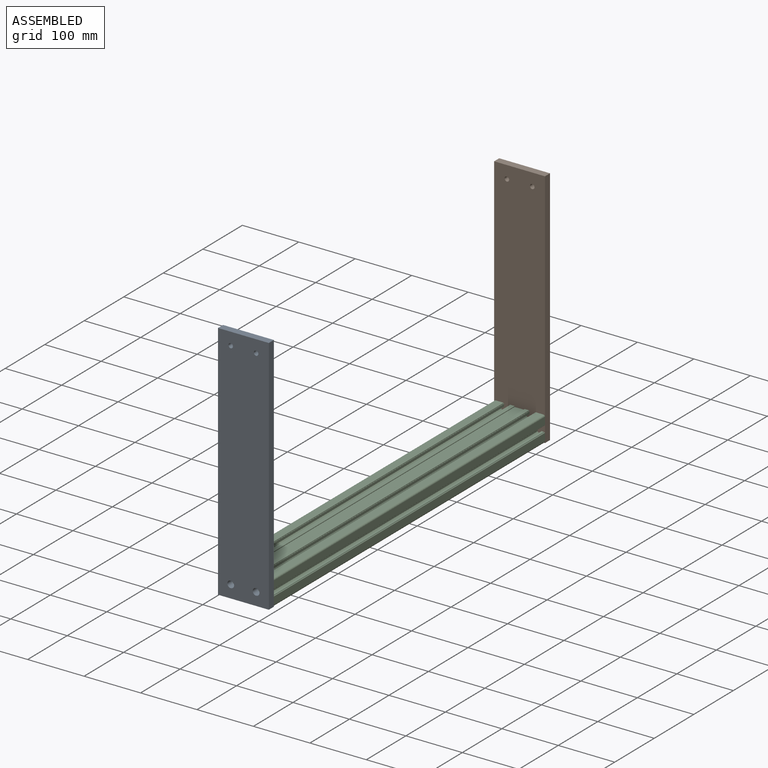
[diagram: assembled view]
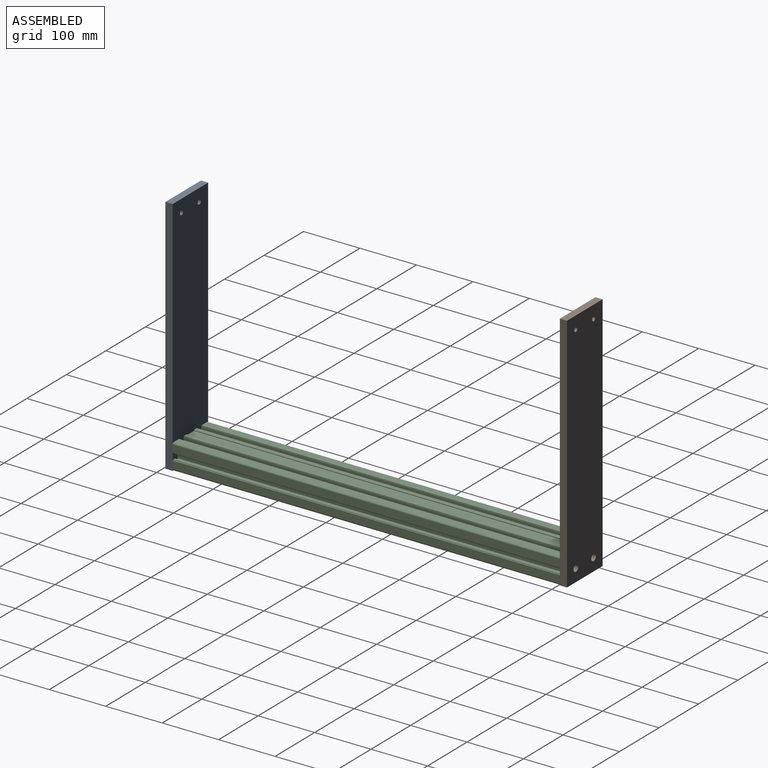
[diagram: assembled view, second angle]
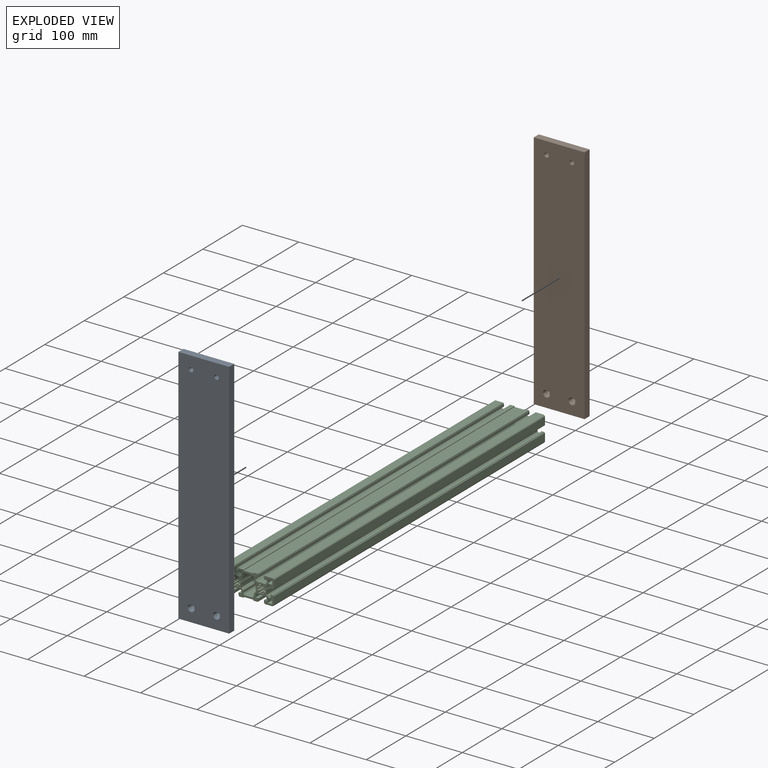
[diagram: exploded view]
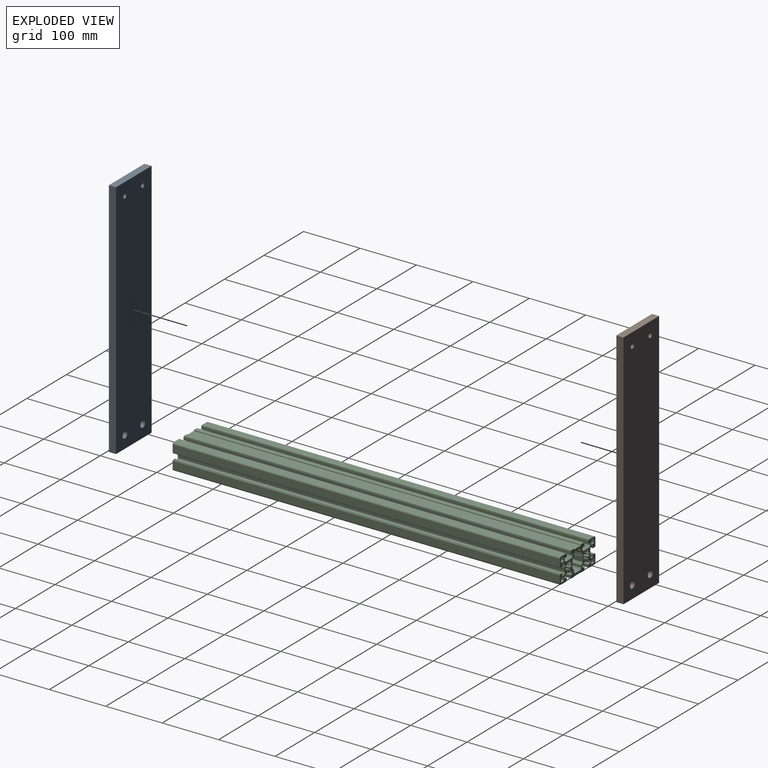
[diagram: exploded view, second angle]
ASSEMBLY  parts=3 mates=2
PART A: 10 faces, bbox 90x12.7x427.2 mm
  f0: plane 90x12.7mm, normal (0,0,1), area 1143mm2, adj f1,f7,f8,f9
  f1: plane 427.15x12.7mm, normal (-1,0,0), area 5424.8mm2, adj f0,f2,f8,f9
  f2: plane 90x12.7mm, normal (0,0,-1), area 1143mm2, adj f1,f7,f8,f9
  f3: cylinder r=6mm len=12.7mm, axis (0,1,0), area 478.8mm2, adj f8,f9
  f4: cylinder r=6mm len=12.7mm, axis (0,1,0), area 478.8mm2, adj f8,f9
  f5: cylinder r=4mm len=12.7mm, axis (0,1,0), area 319.2mm2, adj f8,f9
  f6: cylinder r=4mm len=12.7mm, axis (0,1,0), area 319.2mm2, adj f8,f9
  f7: plane 427.15x12.7mm, normal (1,0,0), area 5424.8mm2, adj f0,f2,f8,f9
  f8: plane 427.15x90mm, normal (0,-1,0), area 38116.9mm2, adj f0,f1,f2,f3,f4,f5,f6,f7
  f9: plane 427.15x90mm, normal (0,1,0), area 38116.9mm2, adj f0,f1,f2,f3,f4,f5,f6,f7
PART B: same geometry as A
PART C: 246 faces, bbox 45x90x686 mm
  f0: cylinder r=4mm len=686mm, axis (0,0,1), area 4310.3mm2, adj f131,f132,f224,f225
  f1: cylinder r=5mm len=686mm, axis (0,0,1), area 1197.3mm2, adj f131,f132,f183,f184
  f2: cylinder r=5mm len=686mm, axis (0,0,1), area 1197.3mm2, adj f131,f132,f160,f161
  f3: cylinder r=10mm len=686mm, axis (0,0,1), area 4357.2mm2, adj f67,f68,f131,f132
  f4: cylinder r=10mm len=686mm, axis (0,0,1), area 4357.2mm2, adj f44,f45,f131,f132
  f5: cylinder r=10mm len=686mm, axis (0,0,1), area 4357.2mm2, adj f6,f130,f131,f132
  f6: plane 686x4.08mm, normal (-1,0,0), area 2801.9mm2, adj f5,f7,f131,f132
  f7: plane 686x2.84mm, normal (-0.71,-0.71,0), area 2758.1mm2, adj f6,f8,f131,f132
  f8: plane 686x4.16mm, normal (0,-1,0), area 2851.8mm2, adj f7,f9,f131,f132
  f9: plane 686x5.05mm, normal (1,0,0), area 3464mm2, adj f8,f10,f131,f132
  f10: plane 686x4.5mm, normal (0,-1,0), area 3087mm2, adj f9,f11,f131,f132
  f11: plane 686x0.8mm, normal (-1,0,0), area 548.5mm2, adj f10,f12,f131,f132
  f12: plane 686x1mm, normal (0,-1,0), area 686mm2, adj f11,f13,f131,f132
  f13: cylinder r=0.5mm len=686mm, axis (0,0,1), area 538.8mm2, adj f12,f14,f131,f132
  f14: plane 686x13.2mm, normal (-1,0,0), area 9055.4mm2, adj f13,f15,f131,f132
  f15: cylinder r=3mm len=686mm, axis (0,0,1), area 3232.7mm2, adj f14,f16,f131,f132
  f16: plane 686x13.2mm, normal (0,1,0), area 9055.1mm2, adj f15,f17,f131,f132
  f17: cylinder r=0.5mm len=686mm, axis (0,0,1), area 538.8mm2, adj f16,f18,f131,f132
  f18: plane 686x1mm, normal (1,0,0), area 686.1mm2, adj f17,f19,f131,f132
  f19: plane 686x0.8mm, normal (0,1,0), area 548.9mm2, adj f18,f20,f131,f132
  f20: plane 686x4.5mm, normal (1,0,0), area 3087mm2, adj f19,f21,f131,f132
  f21: plane 686x5.05mm, normal (0,-1,0), area 3464.3mm2, adj f20,f22,f131,f132
  f22: plane 686x4.16mm, normal (1,0,0), area 2851.8mm2, adj f21,f23,f131,f132
  f23: plane 686x2.84mm, normal (0.71,0.71,0), area 2758.1mm2, adj f22,f24,f131,f132
  f24: plane 686x4.08mm, normal (0,1,0), area 2801.9mm2, adj f23,f25,f131,f132
  f25: cylinder r=10mm len=686mm, axis (0,0,1), area 4357.2mm2, adj f24,f26,f131,f132
  f26: plane 686x4.08mm, normal (0,1,0), area 2801.9mm2, adj f25,f27,f131,f132
  f27: plane 686x2.84mm, normal (-0.71,0.71,0), area 2758.1mm2, adj f26,f28,f131,f132
  f28: plane 686x4.16mm, normal (-1,0,0), area 2851.8mm2, adj f27,f29,f131,f132
  f29: plane 686x5.05mm, normal (0,-1,0), area 3464.3mm2, adj f28,f30,f131,f132
  f30: plane 686x4.5mm, normal (-1,0,0), area 3087mm2, adj f29,f31,f131,f132
  f31: plane 686x0.8mm, normal (0,1,0), area 548.9mm2, adj f30,f32,f131,f132
  f32: plane 686x1mm, normal (-1,0,0), area 686.1mm2, adj f31,f33,f131,f132
  f33: cylinder r=0.5mm len=686mm, axis (0,0,1), area 538.8mm2, adj f32,f34,f131,f132
  f34: plane 686x13.2mm, normal (0,1,0), area 9055.1mm2, adj f33,f35,f131,f132
  f35: cylinder r=3mm len=686mm, axis (0,0,1), area 3232.7mm2, adj f34,f36,f131,f132
  f36: plane 686x13.2mm, normal (1,0,0), area 9055.2mm2, adj f35,f37,f131,f132
  f37: cylinder r=0.5mm len=686mm, axis (0,0,1), area 538.8mm2, adj f36,f38,f131,f132
  f38: plane 686x1mm, normal (0,-1,0), area 686mm2, adj f37,f39,f131,f132
  f39: plane 686x0.8mm, normal (1,0,0), area 548.8mm2, adj f38,f40,f131,f132
  f40: plane 686x4.5mm, normal (0,-1,0), area 3087mm2, adj f39,f41,f131,f132
  f41: plane 686x5.05mm, normal (-1,0,0), area 3464.3mm2, adj f40,f42,f131,f132
  f42: plane 686x4.16mm, normal (0,-1,0), area 2851.8mm2, adj f41,f43,f131,f132
  f43: plane 686x2.84mm, normal (0.71,-0.71,0), area 2758.1mm2, adj f42,f44,f131,f132
  f44: plane 686x4.08mm, normal (1,0,0), area 2801.9mm2, adj f4,f43,f131,f132
  f45: plane 686x4.08mm, normal (1,0,0), area 2801.9mm2, adj f4,f46,f131,f132
  f46: plane 686x2.84mm, normal (0.71,0.71,0), area 2758.1mm2, adj f45,f47,f131,f132
  f47: plane 686x4.16mm, normal (0,1,0), area 2851.8mm2, adj f46,f48,f131,f132
  f48: plane 686x5.05mm, normal (-1,0,0), area 3464.3mm2, adj f47,f49,f131,f132
  f49: plane 686x4.5mm, normal (0,1,0), area 3087mm2, adj f48,f50,f131,f132
  f50: plane 686x0.8mm, normal (1,0,0), area 548.9mm2, adj f49,f51,f131,f132
  f51: plane 686x1mm, normal (0,1,0), area 686mm2, adj f50,f52,f131,f132
  f52: cylinder r=0.5mm len=686mm, axis (0,0,1), area 538.8mm2, adj f51,f53,f131,f132
  f53: plane 686x6.95mm, normal (1,0,0), area 4767.7mm2, adj f52,f54,f131,f132
  f54: cylinder r=0.5mm len=686mm, axis (0,0,1), area 538.8mm2, adj f53,f55,f131,f132
  f55: plane 686x1mm, normal (0,-1,0), area 686mm2, adj f54,f56,f131,f132
  f56: plane 686x17.5mm, normal (1,0,0), area 12005mm2, adj f55,f57,f131,f132
  f57: plane 686x1mm, normal (0,1,0), area 686mm2, adj f56,f58,f131,f132
  f58: cylinder r=0.5mm len=686mm, axis (0,0,1), area 538.8mm2, adj f57,f59,f131,f132
  f59: plane 686x6.95mm, normal (1,0,0), area 4767.8mm2, adj f58,f60,f131,f132
  f60: cylinder r=0.5mm len=686mm, axis (0,0,1), area 538.8mm2, adj f59,f61,f131,f132
  f61: plane 686x1mm, normal (0,-1,0), area 685.9mm2, adj f60,f62,f131,f132
  f62: plane 686x0.8mm, normal (1,0,0), area 548.6mm2, adj f61,f63,f131,f132
  f63: plane 686x4.5mm, normal (0,-1,0), area 3087mm2, adj f62,f64,f131,f132
  f64: plane 686x5.05mm, normal (-1,0,0), area 3464.1mm2, adj f63,f65,f131,f132
  f65: plane 686x4.16mm, normal (0,-1,0), area 2851.8mm2, adj f64,f66,f131,f132
  f66: plane 686x2.84mm, normal (0.71,-0.71,0), area 2758.1mm2, adj f65,f67,f131,f132
  f67: plane 686x4.08mm, normal (1,0,0), area 2801.9mm2, adj f3,f66,f131,f132
  f68: plane 686x4.08mm, normal (1,0,0), area 2801.9mm2, adj f3,f69,f131,f132
  f69: plane 686x2.84mm, normal (0.71,0.71,0), area 2758.1mm2, adj f68,f70,f131,f132
  f70: plane 686x4.16mm, normal (0,1,0), area 2851.8mm2, adj f69,f71,f131,f132
  f71: plane 686x5.05mm, normal (-1,0,0), area 3464.3mm2, adj f70,f72,f131,f132
  f72: plane 686x4.5mm, normal (0,1,0), area 3086.9mm2, adj f71,f73,f131,f132
  f73: plane 686x0.8mm, normal (1,0,0), area 548.8mm2, adj f72,f74,f131,f132
  f74: plane 686x1mm, normal (0,1,0), area 686mm2, adj f73,f75,f131,f132
  f75: cylinder r=0.5mm len=686mm, axis (0,0,1), area 538.8mm2, adj f74,f76,f131,f132
  f76: plane 686x13.2mm, normal (1,0,0), area 9055.1mm2, adj f75,f77,f131,f132
  f77: cylinder r=3mm len=686mm, axis (0,0,1), area 3232.7mm2, adj f76,f78,f131,f132
  f78: plane 686x13.2mm, normal (0,-1,0), area 9055.2mm2, adj f77,f79,f131,f132
  f79: cylinder r=0.5mm len=686mm, axis (0,0,1), area 538.8mm2, adj f78,f80,f131,f132
  f80: plane 686x1mm, normal (-1,0,0), area 686mm2, adj f79,f81,f131,f132
  f81: plane 686x0.8mm, normal (0,-1,0), area 548.7mm2, adj f80,f82,f131,f132
  f82: plane 686x4.5mm, normal (-1,0,0), area 3087mm2, adj f81,f83,f131,f132
  f83: plane 686x5.05mm, normal (0,1,0), area 3464.2mm2, adj f82,f84,f131,f132
  f84: plane 686x4.16mm, normal (-1,0,0), area 2851.8mm2, adj f83,f85,f131,f132
  f85: plane 686x2.84mm, normal (-0.71,-0.71,0), area 2758.1mm2, adj f84,f86,f131,f132
  f86: plane 686x4.08mm, normal (0,-1,0), area 2801.9mm2, adj f85,f87,f131,f132
  f87: cylinder r=10mm len=686mm, axis (0,0,1), area 4357.2mm2, adj f86,f88,f131,f132
  f88: plane 686x4.08mm, normal (0,-1,0), area 2801.9mm2, adj f87,f89,f131,f132
  f89: plane 686x2.84mm, normal (0.71,-0.71,0), area 2758.1mm2, adj f88,f90,f131,f132
  f90: plane 686x4.16mm, normal (1,0,0), area 2851.8mm2, adj f89,f91,f131,f132
  f91: plane 686x5.05mm, normal (0,1,0), area 3464.3mm2, adj f90,f92,f131,f132
  f92: plane 686x4.5mm, normal (1,0,0), area 3087mm2, adj f91,f93,f131,f132
  f93: plane 686x0.8mm, normal (0,-1,0), area 548.8mm2, adj f92,f94,f131,f132
  f94: plane 686x1mm, normal (1,0,0), area 686mm2, adj f93,f95,f131,f132
  f95: cylinder r=0.5mm len=686mm, axis (0,0,1), area 538.8mm2, adj f94,f96,f131,f132
  f96: plane 686x13.2mm, normal (0,-1,0), area 9055.1mm2, adj f95,f97,f131,f132
  f97: cylinder r=3mm len=686mm, axis (0,0,1), area 3232.7mm2, adj f96,f98,f131,f132
  f98: plane 686x13.2mm, normal (-1,0,0), area 9055.2mm2, adj f97,f99,f131,f132
  f99: cylinder r=0.5mm len=686mm, axis (0,0,1), area 538.8mm2, adj f98,f100,f131,f132
  f100: plane 686x1mm, normal (0,1,0), area 686mm2, adj f99,f101,f131,f132
  f101: plane 686x0.8mm, normal (-1,0,0), area 548.8mm2, adj f100,f102,f131,f132
  f102: plane 686x4.5mm, normal (0,1,0), area 3087mm2, adj f101,f103,f131,f132
  f103: plane 686x5.05mm, normal (1,0,0), area 3464.3mm2, adj f102,f104,f131,f132
  f104: plane 686x4.16mm, normal (0,1,0), area 2851.8mm2, adj f103,f105,f131,f132
  f105: plane 686x2.84mm, normal (-0.71,0.71,0), area 2758.1mm2, adj f104,f106,f131,f132
  f106: plane 686x4.08mm, normal (-1,0,0), area 2801.9mm2, adj f105,f107,f131,f132
  f107: cylinder r=10mm len=686mm, axis (0,0,1), area 4357.2mm2, adj f106,f108,f131,f132
  f108: plane 686x4.08mm, normal (-1,0,0), area 2801.9mm2, adj f107,f109,f131,f132
  f109: plane 686x2.84mm, normal (-0.71,-0.71,0), area 2758.1mm2, adj f108,f110,f131,f132
  f110: plane 686x4.16mm, normal (0,-1,0), area 2851.8mm2, adj f109,f111,f131,f132
  f111: plane 686x5.05mm, normal (1,0,0), area 3464.3mm2, adj f110,f112,f131,f132
  f112: plane 686x4.5mm, normal (0,-1,0), area 3087mm2, adj f111,f113,f131,f132
  f113: plane 686x0.8mm, normal (-1,0,0), area 548.8mm2, adj f112,f114,f131,f132
  f114: plane 686x1mm, normal (0,-1,0), area 686mm2, adj f113,f115,f131,f132
  f115: cylinder r=0.5mm len=686mm, axis (0,0,1), area 538.8mm2, adj f114,f116,f131,f132
  f116: plane 686x6.95mm, normal (-1,0,0), area 4767.7mm2, adj f115,f117,f131,f132
  f117: cylinder r=0.5mm len=686mm, axis (0,0,1), area 538.8mm2, adj f116,f118,f131,f132
  f118: plane 686x1mm, normal (0,1,0), area 686mm2, adj f117,f119,f131,f132
  f119: plane 686x17.5mm, normal (-1,0,0), area 12005mm2, adj f118,f120,f131,f132
  f120: plane 686x1mm, normal (0,-1,0), area 686mm2, adj f119,f121,f131,f132
  f121: cylinder r=0.5mm len=686mm, axis (0,0,1), area 538.8mm2, adj f120,f122,f131,f132
  f122: plane 686x6.95mm, normal (-1,0,0), area 4767.6mm2, adj f121,f123,f131,f132
  f123: cylinder r=0.5mm len=686mm, axis (0,0,1), area 538.8mm2, adj f122,f124,f131,f132
  f124: plane 686x1mm, normal (0,1,0), area 686mm2, adj f123,f125,f131,f132
  f125: plane 686x0.8mm, normal (-1,0,0), area 548.8mm2, adj f124,f126,f131,f132
  f126: plane 686x4.5mm, normal (0,1,0), area 3087mm2, adj f125,f127,f131,f132
  f127: plane 686x5.05mm, normal (1,0,0), area 3464.3mm2, adj f126,f128,f131,f132
  f128: plane 686x4.16mm, normal (0,1,0), area 2851.8mm2, adj f127,f129,f131,f132
  f129: plane 686x2.84mm, normal (-0.71,0.71,0), area 2758.1mm2, adj f128,f130,f131,f132
  f130: plane 686x4.08mm, normal (-1,0,0), area 2801.9mm2, adj f5,f129,f131,f132
  f131: plane 90x45mm, normal (0,0,-1), area 1522.3mm2, adj f0,f1,f2,f3,f4,f5,f6,f7
  f132: plane 90x45mm, normal (0,0,1), area 1522.3mm2, adj f0,f1,f2,f3,f4,f5,f6,f7
  f133: cylinder r=5mm len=686mm, axis (0,0,1), area 1197.3mm2, adj f131,f132,f134,f163
  f134: plane 686x2.46mm, normal (-0.82,-0.57,0), area 2058mm2, adj f131,f132,f133,f135
  f135: cylinder r=8mm len=686mm, axis (0,0,1), area 2394.6mm2, adj f131,f132,f134,f136
  f136: plane 686x2.95mm, normal (0.98,0.17,0), area 2058mm2, adj f131,f132,f135,f137
  f137: cylinder r=5mm len=686mm, axis (0,0,1), area 1197.3mm2, adj f131,f132,f136,f138
  f138: plane 686x2.95mm, normal (-0.98,0.17,0), area 2058mm2, adj f131,f132,f137,f139
  f139: cylinder r=8mm len=686mm, axis (0,0,1), area 2394.6mm2, adj f131,f132,f138,f140
  f140: plane 686x2.46mm, normal (0.82,-0.57,0), area 2058mm2, adj f131,f132,f139,f141
  f141: cylinder r=5mm len=686mm, axis (0,0,1), area 1197.3mm2, adj f131,f132,f140,f142
  f142: plane 686x2.46mm, normal (-0.57,0.82,0), area 2058mm2, adj f131,f132,f141,f143
  f143: cylinder r=8mm len=686mm, axis (0,0,1), area 2394.6mm2, adj f131,f132,f142,f144
  f144: plane 686x2.95mm, normal (0.17,-0.98,0), area 2058mm2, adj f131,f132,f143,f145
  f145: cylinder r=5mm len=686mm, axis (0,0,1), area 1197.3mm2, adj f131,f132,f144,f146
  f146: plane 686x2.95mm, normal (0.17,0.98,0), area 2058mm2, adj f131,f132,f145,f147
  f147: cylinder r=8mm len=686mm, axis (0,0,1), area 2394.6mm2, adj f131,f132,f146,f148
  f148: plane 686x2.46mm, normal (-0.57,-0.82,0), area 2058mm2, adj f131,f132,f147,f149
  f149: cylinder r=5mm len=686mm, axis (0,0,1), area 1197.3mm2, adj f131,f132,f148,f150
  f150: plane 686x2.46mm, normal (0.82,0.57,0), area 2058mm2, adj f131,f132,f149,f151
  f151: cylinder r=8mm len=686mm, axis (0,0,1), area 2394.6mm2, adj f131,f132,f150,f152
  f152: plane 686x2.95mm, normal (-0.98,-0.17,0), area 2058mm2, adj f131,f132,f151,f153
  f153: cylinder r=5mm len=686mm, axis (0,0,1), area 1197.3mm2, adj f131,f132,f152,f154
  f154: plane 686x2.95mm, normal (0.98,-0.17,0), area 2058mm2, adj f131,f132,f153,f155
  f155: cylinder r=8mm len=686mm, axis (0,0,1), area 2394.6mm2, adj f131,f132,f154,f156
  f156: plane 686x2.46mm, normal (-0.82,0.57,0), area 2058mm2, adj f131,f132,f155,f157
  f157: cylinder r=5mm len=686mm, axis (0,0,1), area 1197.3mm2, adj f131,f132,f156,f158
  f158: plane 686x2.46mm, normal (0.57,-0.82,0), area 2058mm2, adj f131,f132,f157,f159
  f159: cylinder r=8mm len=686mm, axis (0,0,1), area 2394.6mm2, adj f131,f132,f158,f160
  f160: plane 686x2.95mm, normal (-0.17,0.98,0), area 2058mm2, adj f2,f131,f132,f159
  f161: plane 686x2.95mm, normal (-0.17,-0.98,0), area 2058mm2, adj f2,f131,f132,f162
  f162: cylinder r=8mm len=686mm, axis (0,0,1), area 2394.6mm2, adj f131,f132,f161,f163
  f163: plane 686x2.46mm, normal (0.57,0.82,0), area 2058mm2, adj f131,f132,f133,f162
  f164: cylinder r=1mm len=686mm, axis (0,0,1), area 1077.6mm2, adj f131,f132,f165,f171
  f165: plane 686x5.5mm, normal (0,-1,0), area 3773mm2, adj f131,f132,f164,f166
  f166: cylinder r=1mm len=686mm, axis (0,0,1), area 1077.6mm2, adj f131,f132,f165,f167
  f167: plane 686x5.5mm, normal (-1,0,0), area 3773mm2, adj f131,f132,f166,f168
  f168: cylinder r=1mm len=686mm, axis (0,0,1), area 1077.6mm2, adj f131,f132,f167,f169
  f169: plane 686x5.5mm, normal (0,1,0), area 3773mm2, adj f131,f132,f168,f170
  f170: cylinder r=1mm len=686mm, axis (0,0,1), area 1077.6mm2, adj f131,f132,f169,f171
  f171: plane 686x5.5mm, normal (1,0,0), area 3773mm2, adj f131,f132,f164,f170
  f172: cylinder r=1mm len=686mm, axis (0,0,1), area 1077.6mm2, adj f131,f132,f173,f179
  f173: plane 686x5.5mm, normal (0,-1,0), area 3773mm2, adj f131,f132,f172,f174
  f174: cylinder r=1mm len=686mm, axis (0,0,1), area 1077.6mm2, adj f131,f132,f173,f175
  f175: plane 686x5.5mm, normal (-1,0,0), area 3773mm2, adj f131,f132,f174,f176
  f176: cylinder r=1mm len=686mm, axis (0,0,1), area 1077.6mm2, adj f131,f132,f175,f177
  f177: plane 686x5.5mm, normal (0,1,0), area 3773mm2, adj f131,f132,f176,f178
  f178: cylinder r=1mm len=686mm, axis (0,0,1), area 1077.6mm2, adj f131,f132,f177,f179
  f179: plane 686x5.5mm, normal (1,0,0), area 3773mm2, adj f131,f132,f172,f178
  f180: cylinder r=5mm len=686mm, axis (0,0,1), area 1197.3mm2, adj f131,f132,f181,f210
  f181: plane 686x2.46mm, normal (0.57,-0.82,0), area 2058mm2, adj f131,f132,f180,f182
  f182: cylinder r=8mm len=686mm, axis (0,0,1), area 2394.6mm2, adj f131,f132,f181,f183
  f183: plane 686x2.95mm, normal (-0.17,0.98,0), area 2058mm2, adj f1,f131,f132,f182
  f184: plane 686x2.95mm, normal (-0.17,-0.98,0), area 2058mm2, adj f1,f131,f132,f185
  f185: cylinder r=8mm len=686mm, axis (0,0,1), area 2394.6mm2, adj f131,f132,f184,f186
  f186: plane 686x2.46mm, normal (0.57,0.82,0), area 2058mm2, adj f131,f132,f185,f187
  f187: cylinder r=5mm len=686mm, axis (0,0,1), area 1197.3mm2, adj f131,f132,f186,f188
  f188: plane 686x2.46mm, normal (-0.82,-0.57,0), area 2058mm2, adj f131,f132,f187,f189
  f189: cylinder r=8mm len=686mm, axis (0,0,1), area 2394.6mm2, adj f131,f132,f188,f190
  f190: plane 686x2.95mm, normal (0.98,0.17,0), area 2058mm2, adj f131,f132,f189,f191
  f191: cylinder r=5mm len=686mm, axis (0,0,1), area 1197.3mm2, adj f131,f132,f190,f192
  f192: plane 686x2.95mm, normal (-0.98,0.17,0), area 2058mm2, adj f131,f132,f191,f193
  f193: cylinder r=8mm len=686mm, axis (0,0,1), area 2394.6mm2, adj f131,f132,f192,f194
  f194: plane 686x2.46mm, normal (0.82,-0.57,0), area 2058mm2, adj f131,f132,f193,f195
  f195: cylinder r=5mm len=686mm, axis (0,0,1), area 1197.3mm2, adj f131,f132,f194,f196
  f196: plane 686x2.46mm, normal (-0.57,0.82,0), area 2058mm2, adj f131,f132,f195,f197
  f197: cylinder r=8mm len=686mm, axis (0,0,1), area 2394.6mm2, adj f131,f132,f196,f198
  f198: plane 686x2.95mm, normal (0.17,-0.98,0), area 2058mm2, adj f131,f132,f197,f199
  f199: cylinder r=5mm len=686mm, axis (0,0,1), area 1197.3mm2, adj f131,f132,f198,f200
  f200: plane 686x2.95mm, normal (0.17,0.98,0), area 2058mm2, adj f131,f132,f199,f201
  f201: cylinder r=8mm len=686mm, axis (0,0,1), area 2394.6mm2, adj f131,f132,f200,f202
  f202: plane 686x2.46mm, normal (-0.57,-0.82,0), area 2058mm2, adj f131,f132,f201,f203
  f203: cylinder r=5mm len=686mm, axis (0,0,1), area 1197.3mm2, adj f131,f132,f202,f204
  f204: plane 686x2.46mm, normal (0.82,0.57,0), area 2058mm2, adj f131,f132,f203,f205
  f205: cylinder r=8mm len=686mm, axis (0,0,1), area 2394.6mm2, adj f131,f132,f204,f206
  f206: plane 686x2.95mm, normal (-0.98,-0.17,0), area 2058mm2, adj f131,f132,f205,f207
  f207: cylinder r=5mm len=686mm, axis (0,0,1), area 1197.3mm2, adj f131,f132,f206,f208
  f208: plane 686x2.95mm, normal (0.98,-0.17,0), area 2058mm2, adj f131,f132,f207,f209
  f209: cylinder r=8mm len=686mm, axis (0,0,1), area 2394.6mm2, adj f131,f132,f208,f210
  f210: plane 686x2.46mm, normal (-0.82,0.57,0), area 2058mm2, adj f131,f132,f180,f209
  f211: cylinder r=10mm len=686mm, axis (0,0,1), area 4356.9mm2, adj f131,f132,f212,f229
  f212: plane 686x4.39mm, normal (0,1,0), area 3008.1mm2, adj f131,f132,f211,f213
  f213: plane 686x3.55mm, normal (0.71,0.71,0), area 3444mm2, adj f131,f132,f212,f214
  f214: plane 686x2.94mm, normal (0,1,0), area 2018.6mm2, adj f131,f132,f213,f215
  f215: cylinder r=4mm len=686mm, axis (0,0,1), area 4310.3mm2, adj f131,f132,f214,f216
  f216: plane 686x10.9mm, normal (1,0,0), area 7477.4mm2, adj f131,f132,f215,f217
  f217: cylinder r=4mm len=686mm, axis (0,0,1), area 4310.3mm2, adj f131,f132,f216,f218
  f218: plane 686x2.94mm, normal (0,-1,0), area 2018.6mm2, adj f131,f132,f217,f219
  f219: plane 686x3.55mm, normal (0.71,-0.71,0), area 3444mm2, adj f131,f132,f218,f220
  f220: plane 686x4.39mm, normal (0,-1,0), area 3008.1mm2, adj f131,f132,f219,f221
  f221: cylinder r=10mm len=686mm, axis (0,0,1), area 4356.9mm2, adj f131,f132,f220,f222
  f222: plane 686x4.38mm, normal (0,-1,0), area 3008mm2, adj f131,f132,f221,f223
  f223: plane 686x3.55mm, normal (-0.71,-0.71,0), area 3444mm2, adj f131,f132,f222,f224
  f224: plane 686x2.94mm, normal (0,-1,0), area 2018.6mm2, adj f0,f131,f132,f223
  f225: plane 686x10.9mm, normal (-1,0,0), area 7477.4mm2, adj f0,f131,f132,f226
  f226: cylinder r=4mm len=686mm, axis (0,0,1), area 4310.3mm2, adj f131,f132,f225,f227
  f227: plane 686x2.94mm, normal (0,1,0), area 2018.6mm2, adj f131,f132,f226,f228
  f228: plane 686x3.55mm, normal (-0.71,0.71,0), area 3444mm2, adj f131,f132,f227,f229
  f229: plane 686x4.38mm, normal (0,1,0), area 3008mm2, adj f131,f132,f211,f228
  f230: cylinder r=1mm len=686mm, axis (0,0,1), area 1077.6mm2, adj f131,f132,f231,f237
  f231: plane 686x5.5mm, normal (0,1,0), area 3773mm2, adj f131,f132,f230,f232
  f232: cylinder r=1mm len=686mm, axis (0,0,1), area 1077.6mm2, adj f131,f132,f231,f233
  f233: plane 686x5.5mm, normal (1,0,0), area 3773mm2, adj f131,f132,f232,f234
  f234: cylinder r=1mm len=686mm, axis (0,0,1), area 1077.6mm2, adj f131,f132,f233,f235
  f235: plane 686x5.5mm, normal (0,-1,0), area 3773mm2, adj f131,f132,f234,f236
  f236: cylinder r=1mm len=686mm, axis (0,0,1), area 1077.6mm2, adj f131,f132,f235,f237
  f237: plane 686x5.5mm, normal (-1,0,0), area 3773mm2, adj f131,f132,f230,f236
  f238: cylinder r=1mm len=686mm, axis (0,0,1), area 1077.6mm2, adj f131,f132,f239,f245
  f239: plane 686x5.5mm, normal (1,0,0), area 3773mm2, adj f131,f132,f238,f240
  f240: cylinder r=1mm len=686mm, axis (0,0,1), area 1077.6mm2, adj f131,f132,f239,f241
  f241: plane 686x5.5mm, normal (0,-1,0), area 3773mm2, adj f131,f132,f240,f242
  f242: cylinder r=1mm len=686mm, axis (0,0,1), area 1077.6mm2, adj f131,f132,f241,f243
  f243: plane 686x5.5mm, normal (-1,0,0), area 3773mm2, adj f131,f132,f242,f244
  f244: cylinder r=1mm len=686mm, axis (0,0,1), area 1077.6mm2, adj f131,f132,f243,f245
  f245: plane 686x5.5mm, normal (0,1,0), area 3773mm2, adj f131,f132,f238,f244
PLACE A rot(axis=(0.16,0.44,-0.88),0deg) t=(-1685.81,331.28,-310.78)mm
PLACE B t=(-1685.81,1029.98,-310.78)mm
PLACE C rot(axis=(-0.58,0.58,0.58),120deg) t=(-1640.81,1017.28,-715.43)mm
MATE fastened A.f3 <-> C.f182  axis (0,1,0) through (-1663.31,331.28,-715.43)mm
MATE fastened C.f162 <-> B.f4  axis (0,1,0) through (-1618.31,1017.28,-715.43)mm
